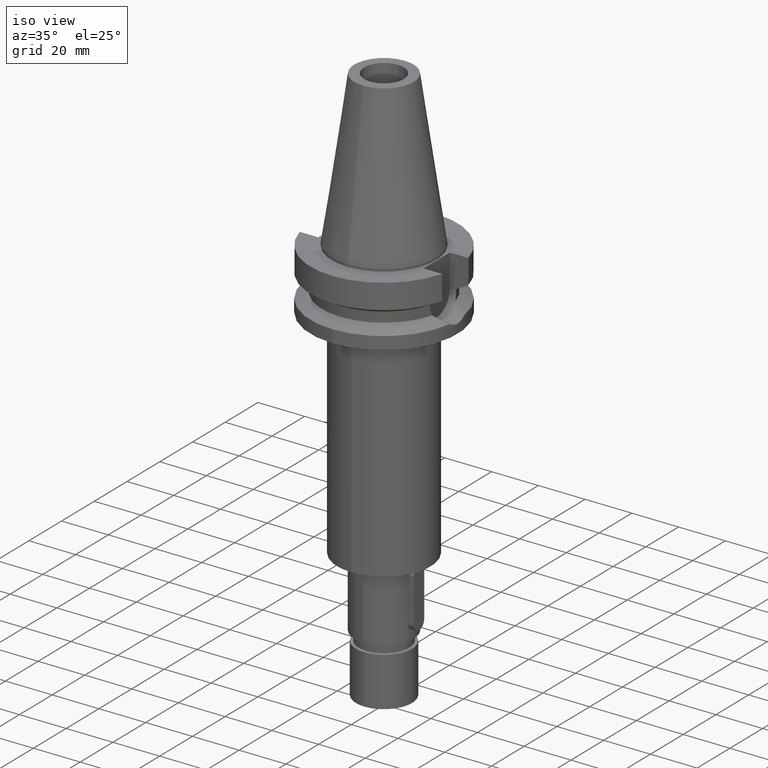
[diagram: clean part render]
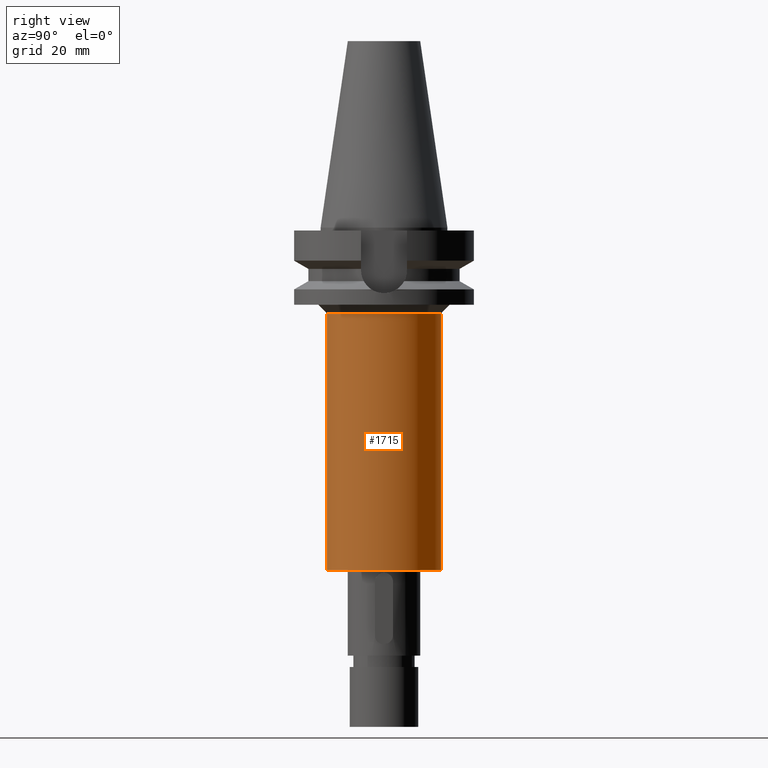
[diagram: tour spotlight — one face highlighted and labeled with its STEP entity id]
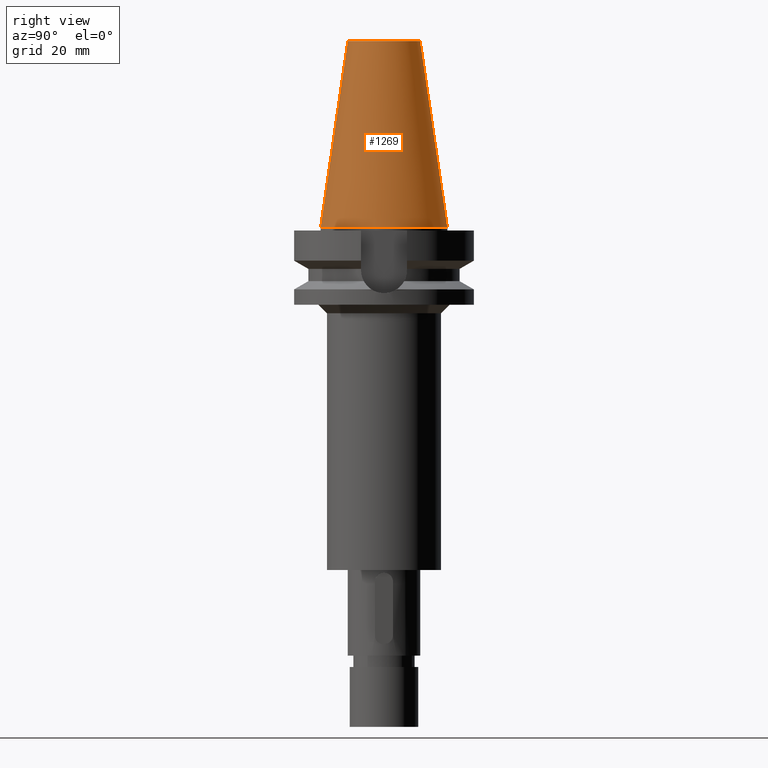
[diagram: tour spotlight — one face highlighted and labeled with its STEP entity id]
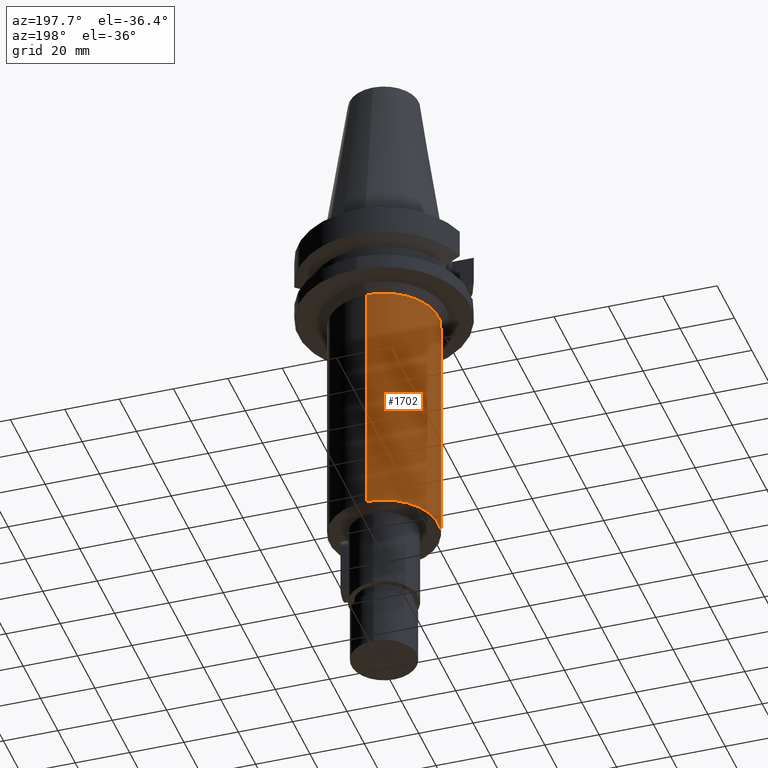
[diagram: tour spotlight — one face highlighted and labeled with its STEP entity id]
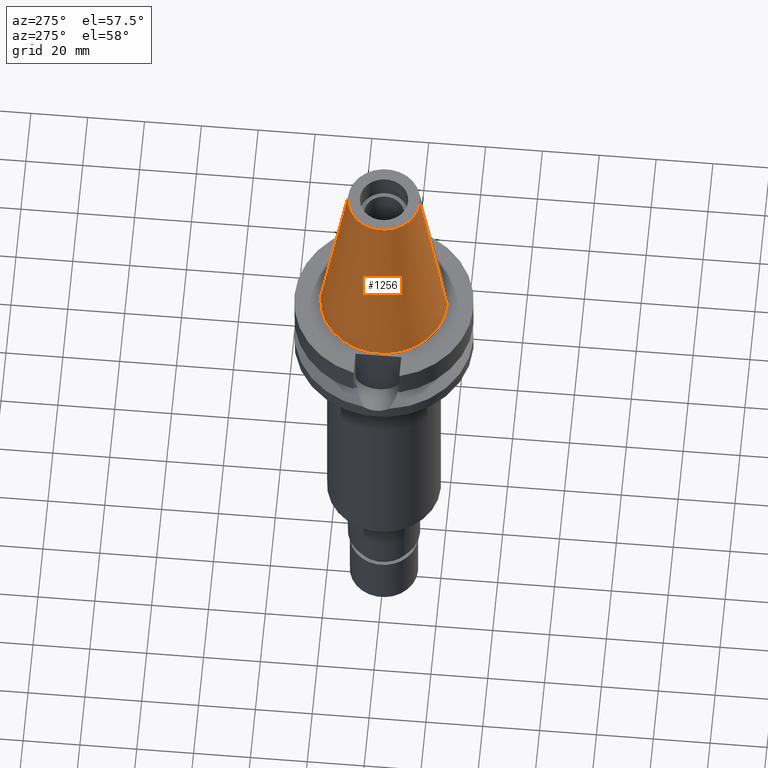
[diagram: tour spotlight — one face highlighted and labeled with its STEP entity id]
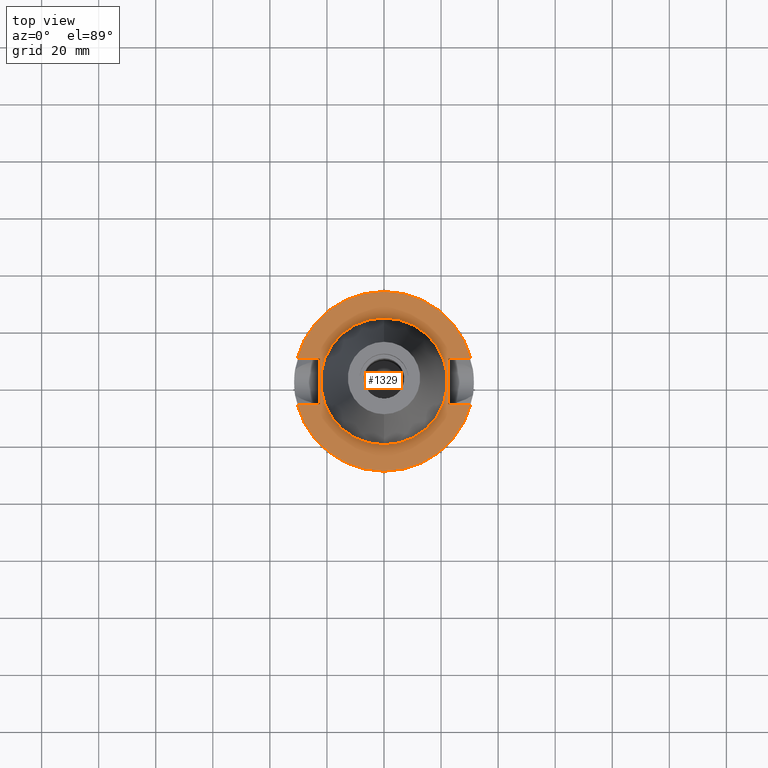
[diagram: tour spotlight — one face highlighted and labeled with its STEP entity id]
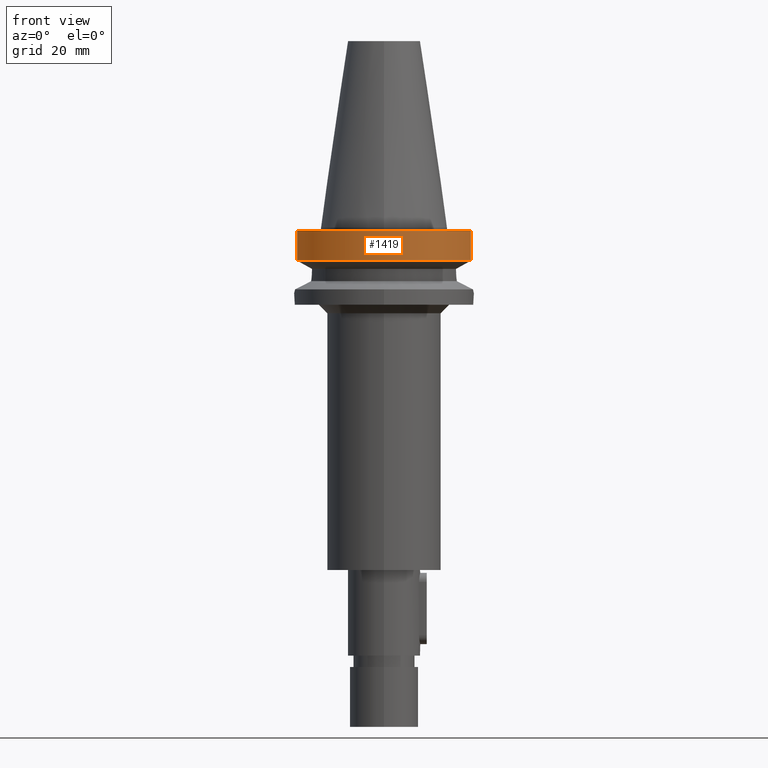
[diagram: tour spotlight — one face highlighted and labeled with its STEP entity id]
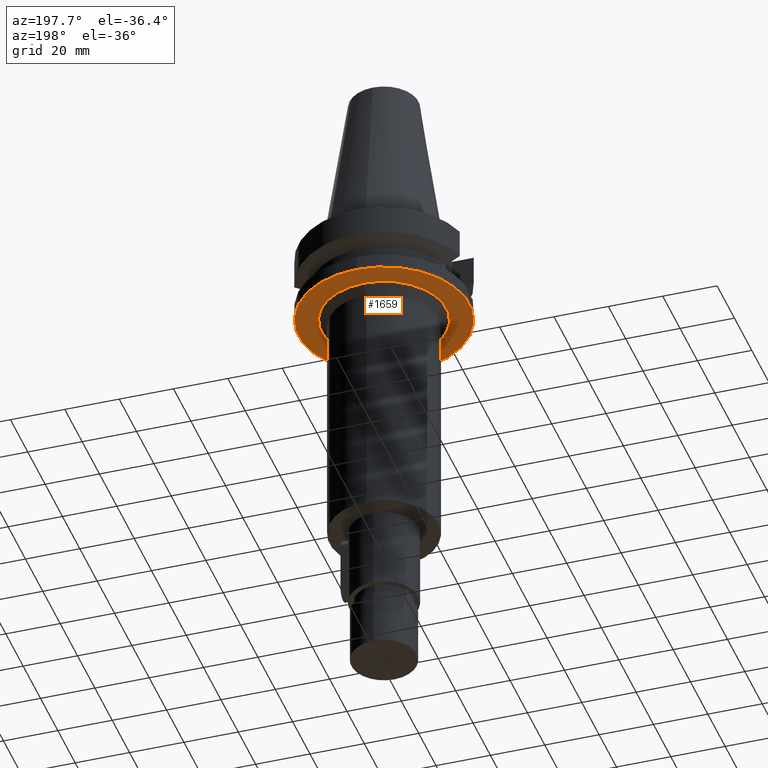
[diagram: tour spotlight — one face highlighted and labeled with its STEP entity id]
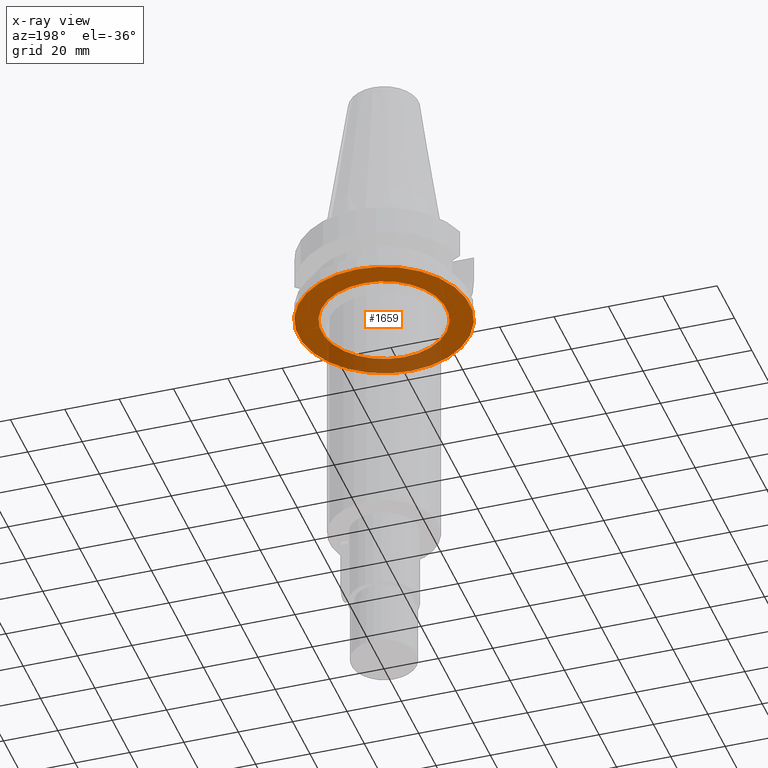
[diagram: x-ray of the same camera — body ghosted, this tour face saturated]
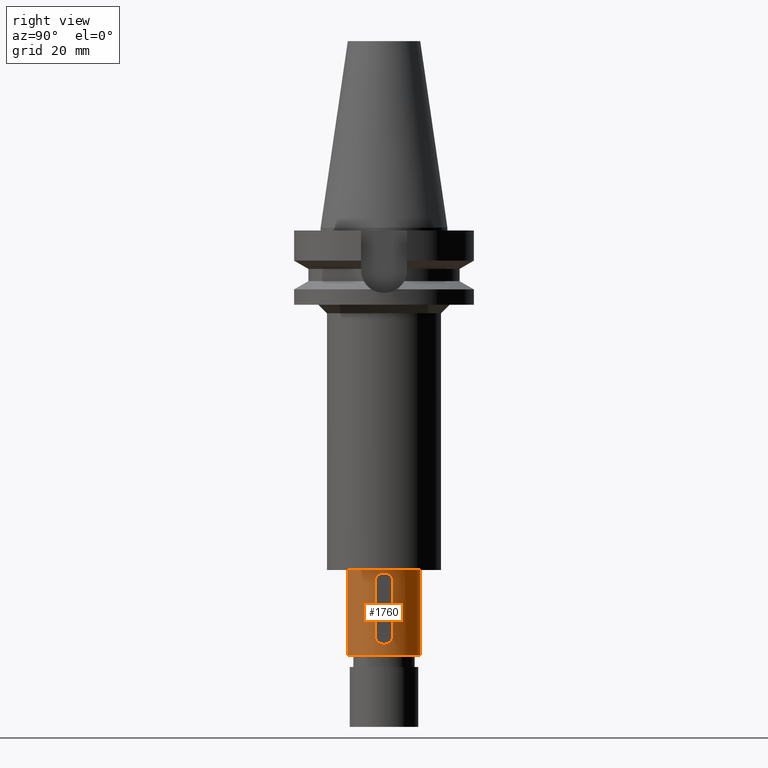
[diagram: tour spotlight — one face highlighted and labeled with its STEP entity id]
A machine part: a face-by-face anatomy tour. The part has 50 B-rep faces; the first image is the clean iso view, then the 8 largest visible faces are spotlighted one at a time (largest first), each with its STEP entity span.

Face 1 — right view, entity #1715. In plain terms, the highlighted cylindrical surface (partial cylindrical patch) has radius 20 mm, axis along (0, 0, -1).
Definition (entity closure, byte-faithful):
#655=CARTESIAN_POINT('',(0.E0,0.E0,-3.E1));
#656=DIRECTION('',(0.E0,0.E0,-1.E0));
#657=DIRECTION('',(0.E0,1.E0,0.E0));
#658=AXIS2_PLACEMENT_3D('',#655,#656,#657);
#678=DIRECTION('',(0.E0,0.E0,-1.E0));
#679=VECTOR('',#678,9.E1);
#680=CARTESIAN_POINT('',(0.E0,-2.E1,-3.E1));
#681=LINE('',#680,#679);
#685=DIRECTION('',(0.E0,0.E0,-1.E0));
#686=VECTOR('',#685,9.E1);
#687=CARTESIAN_POINT('',(0.E0,2.E1,-3.E1));
#688=LINE('',#687,#686);
#700=CARTESIAN_POINT('',(0.E0,2.172768351047E-14,-1.2E2));
#701=DIRECTION('',(0.E0,0.E0,1.E0));
#702=DIRECTION('',(0.E0,-1.E0,0.E0));
#703=AXIS2_PLACEMENT_3D('',#700,#701,#702);
#1173=CARTESIAN_POINT('',(0.E0,2.E1,-3.E1));
#1174=VERTEX_POINT('',#1173);
#1175=CARTESIAN_POINT('',(0.E0,-2.E1,-3.E1));
#1176=VERTEX_POINT('',#1175);
#1177=CARTESIAN_POINT('',(0.E0,2.E1,-1.2E2));
#1178=VERTEX_POINT('',#1177);
#1179=CARTESIAN_POINT('',(0.E0,-2.E1,-1.2E2));
#1180=VERTEX_POINT('',#1179);
#1703=CARTESIAN_POINT('',(0.E0,2.172768351047E-14,7.742E1));
#1704=DIRECTION('',(0.E0,0.E0,-1.E0));
#1705=DIRECTION('',(0.E0,-1.E0,0.E0));
#1706=AXIS2_PLACEMENT_3D('',#1703,#1704,#1705);
#1707=CYLINDRICAL_SURFACE('',#1706,2.E1);
#1708=ORIENTED_EDGE('',*,*,#1693,.T.);
#1710=ORIENTED_EDGE('',*,*,#1709,.F.);
#1711=ORIENTED_EDGE('',*,*,#1696,.F.);
#1712=ORIENTED_EDGE('',*,*,#1667,.F.);
#1713=EDGE_LOOP('',(#1708,#1710,#1711,#1712));
#1714=FACE_OUTER_BOUND('',#1713,.F.);
#659=CIRCLE('',#658,2.E1);
#704=CIRCLE('',#703,2.E1);
#1667=EDGE_CURVE('',#1174,#1176,#659,.T.);
#1693=EDGE_CURVE('',#1174,#1178,#688,.T.);
#1696=EDGE_CURVE('',#1176,#1180,#681,.T.);
#1709=EDGE_CURVE('',#1180,#1178,#704,.T.);
#1715=ADVANCED_FACE('',(#1714),#1707,.T.);

Face 2 — right view, entity #1269. In plain terms, the highlighted conical surface has half-angle 8.297 deg.
Definition (entity closure, byte-faithful):
#26=CARTESIAN_POINT('',(0.E0,1.625106302469E-14,6.54E1));
#27=DIRECTION('',(0.E0,0.E0,-1.E0));
#28=DIRECTION('',(0.E0,1.E0,0.E0));
#29=AXIS2_PLACEMENT_3D('',#26,#27,#28);
#50=DIRECTION('',(0.E0,-1.443043893540E-1,-9.895333461856E-1));
#51=VECTOR('',#50,6.609175956738E1);
#52=CARTESIAN_POINT('',(0.E0,-1.268766899430E1,6.54E1));
#53=LINE('',#52,#51);
#65=DIRECTION('',(0.E0,1.443043893540E-1,-9.895333461856E-1));
#66=VECTOR('',#65,6.609175956738E1);
#67=CARTESIAN_POINT('',(0.E0,1.268766899430E1,6.54E1));
#68=LINE('',#67,#66);
#72=CARTESIAN_POINT('',(0.E0,1.625106302469E-14,2.842170943040E-14));
#73=DIRECTION('',(0.E0,0.E0,-1.E0));
#74=DIRECTION('',(0.E0,1.E0,0.E0));
#75=AXIS2_PLACEMENT_3D('',#72,#73,#74);
#1058=CARTESIAN_POINT('',(0.E0,-1.268766899430E1,6.54E1));
#1059=CARTESIAN_POINT('',(0.E0,1.268766899430E1,6.54E1));
#1060=VERTEX_POINT('',#1058);
#1061=VERTEX_POINT('',#1059);
#1078=CARTESIAN_POINT('',(0.E0,2.2225E1,7.105427357601E-14));
#1079=VERTEX_POINT('',#1078);
#1080=CARTESIAN_POINT('',(0.E0,-2.2225E1,7.105427357601E-14));
#1081=VERTEX_POINT('',#1080);
#1257=CARTESIAN_POINT('',(0.E0,1.625106302469E-14,3.27E1));
#1258=DIRECTION('',(0.E0,0.E0,-1.E0));
#1259=DIRECTION('',(0.E0,-1.E0,0.E0));
#1260=AXIS2_PLACEMENT_3D('',#1257,#1258,#1259);
#1261=CONICAL_SURFACE('',#1260,1.745633449715E1,8.297E0);
#1262=ORIENTED_EDGE('',*,*,#1247,.T.);
#1264=ORIENTED_EDGE('',*,*,#1263,.T.);
#1265=ORIENTED_EDGE('',*,*,#1250,.F.);
#1266=ORIENTED_EDGE('',*,*,#1231,.F.);
#1267=EDGE_LOOP('',(#1262,#1264,#1265,#1266));
#1268=FACE_OUTER_BOUND('',#1267,.F.);
#30=CIRCLE('',#29,1.268766899430E1);
#76=CIRCLE('',#75,2.2225E1);
#1231=EDGE_CURVE('',#1061,#1060,#30,.T.);
#1247=EDGE_CURVE('',#1061,#1079,#68,.T.);
#1250=EDGE_CURVE('',#1060,#1081,#53,.T.);
#1263=EDGE_CURVE('',#1079,#1081,#76,.T.);
#1269=ADVANCED_FACE('',(#1268),#1261,.T.);

Face 3 — auxiliary view, entity #1702. In plain terms, the highlighted cylindrical surface (partial cylindrical patch) has radius 20 mm, axis along (0, 0, -1).
Definition (entity closure, byte-faithful):
#670=CARTESIAN_POINT('',(0.E0,0.E0,-3.E1));
#671=DIRECTION('',(0.E0,0.E0,-1.E0));
#672=DIRECTION('',(0.E0,-1.E0,0.E0));
#673=AXIS2_PLACEMENT_3D('',#670,#671,#672);
#678=DIRECTION('',(0.E0,0.E0,-1.E0));
#679=VECTOR('',#678,9.E1);
#680=CARTESIAN_POINT('',(0.E0,-2.E1,-3.E1));
#681=LINE('',#680,#679);
#685=DIRECTION('',(0.E0,0.E0,-1.E0));
#686=VECTOR('',#685,9.E1);
#687=CARTESIAN_POINT('',(0.E0,2.E1,-3.E1));
#688=LINE('',#687,#686);
#692=CARTESIAN_POINT('',(0.E0,2.172768351047E-14,-1.2E2));
#693=DIRECTION('',(0.E0,0.E0,1.E0));
#694=DIRECTION('',(0.E0,1.E0,0.E0));
#695=AXIS2_PLACEMENT_3D('',#692,#693,#694);
#1173=CARTESIAN_POINT('',(0.E0,2.E1,-3.E1));
#1174=VERTEX_POINT('',#1173);
#1175=CARTESIAN_POINT('',(0.E0,-2.E1,-3.E1));
#1176=VERTEX_POINT('',#1175);
#1177=CARTESIAN_POINT('',(0.E0,2.E1,-1.2E2));
#1178=VERTEX_POINT('',#1177);
#1179=CARTESIAN_POINT('',(0.E0,-2.E1,-1.2E2));
#1180=VERTEX_POINT('',#1179);
#1688=CARTESIAN_POINT('',(0.E0,2.172768351047E-14,7.742E1));
#1689=DIRECTION('',(0.E0,0.E0,-1.E0));
#1690=DIRECTION('',(0.E0,-1.E0,0.E0));
#1691=AXIS2_PLACEMENT_3D('',#1688,#1689,#1690);
#1692=CYLINDRICAL_SURFACE('',#1691,2.E1);
#1694=ORIENTED_EDGE('',*,*,#1693,.F.);
#1695=ORIENTED_EDGE('',*,*,#1683,.F.);
#1697=ORIENTED_EDGE('',*,*,#1696,.T.);
#1699=ORIENTED_EDGE('',*,*,#1698,.F.);
#1700=EDGE_LOOP('',(#1694,#1695,#1697,#1699));
#1701=FACE_OUTER_BOUND('',#1700,.F.);
#674=CIRCLE('',#673,2.E1);
#696=CIRCLE('',#695,2.E1);
#1683=EDGE_CURVE('',#1176,#1174,#674,.T.);
#1693=EDGE_CURVE('',#1174,#1178,#688,.T.);
#1696=EDGE_CURVE('',#1176,#1180,#681,.T.);
#1698=EDGE_CURVE('',#1178,#1180,#696,.T.);
#1702=ADVANCED_FACE('',(#1701),#1692,.T.);

Face 4 — auxiliary view, entity #1256. In plain terms, the highlighted conical surface has half-angle 8.297 deg.
Definition (entity closure, byte-faithful):
#17=CARTESIAN_POINT('',(0.E0,1.625106302469E-14,6.54E1));
#18=DIRECTION('',(0.E0,0.E0,-1.E0));
#19=DIRECTION('',(0.E0,-1.E0,0.E0));
#20=AXIS2_PLACEMENT_3D('',#17,#18,#19);
#50=DIRECTION('',(0.E0,-1.443043893540E-1,-9.895333461856E-1));
#51=VECTOR('',#50,6.609175956738E1);
#52=CARTESIAN_POINT('',(0.E0,-1.268766899430E1,6.54E1));
#53=LINE('',#52,#51);
#57=CARTESIAN_POINT('',(0.E0,1.625106302469E-14,2.842170943040E-14));
#58=DIRECTION('',(0.E0,0.E0,-1.E0));
#59=DIRECTION('',(0.E0,-1.E0,0.E0));
#60=AXIS2_PLACEMENT_3D('',#57,#58,#59);
#65=DIRECTION('',(0.E0,1.443043893540E-1,-9.895333461856E-1));
#66=VECTOR('',#65,6.609175956738E1);
#67=CARTESIAN_POINT('',(0.E0,1.268766899430E1,6.54E1));
#68=LINE('',#67,#66);
#1058=CARTESIAN_POINT('',(0.E0,-1.268766899430E1,6.54E1));
#1059=CARTESIAN_POINT('',(0.E0,1.268766899430E1,6.54E1));
#1060=VERTEX_POINT('',#1058);
#1061=VERTEX_POINT('',#1059);
#1078=CARTESIAN_POINT('',(0.E0,2.2225E1,7.105427357601E-14));
#1079=VERTEX_POINT('',#1078);
#1080=CARTESIAN_POINT('',(0.E0,-2.2225E1,7.105427357601E-14));
#1081=VERTEX_POINT('',#1080);
#1242=CARTESIAN_POINT('',(0.E0,1.625106302469E-14,3.27E1));
#1243=DIRECTION('',(0.E0,0.E0,-1.E0));
#1244=DIRECTION('',(0.E0,-1.E0,0.E0));
#1245=AXIS2_PLACEMENT_3D('',#1242,#1243,#1244);
#1246=CONICAL_SURFACE('',#1245,1.745633449715E1,8.297E0);
#1248=ORIENTED_EDGE('',*,*,#1247,.F.);
#1249=ORIENTED_EDGE('',*,*,#1229,.F.);
#1251=ORIENTED_EDGE('',*,*,#1250,.T.);
#1253=ORIENTED_EDGE('',*,*,#1252,.T.);
#1254=EDGE_LOOP('',(#1248,#1249,#1251,#1253));
#1255=FACE_OUTER_BOUND('',#1254,.F.);
#21=CIRCLE('',#20,1.268766899430E1);
#61=CIRCLE('',#60,2.2225E1);
#1229=EDGE_CURVE('',#1060,#1061,#21,.T.);
#1247=EDGE_CURVE('',#1061,#1079,#68,.T.);
#1250=EDGE_CURVE('',#1060,#1081,#53,.T.);
#1252=EDGE_CURVE('',#1081,#1079,#61,.T.);
#1256=ADVANCED_FACE('',(#1255),#1246,.T.);

Face 5 — top view, entity #1329. In plain terms, the highlighted planar face has unit normal (0, 0, -1).
Definition (entity closure, byte-faithful):
#94=DIRECTION('',(0.E0,1.E0,0.E0));
#95=VECTOR('',#94,1.61E1);
#96=CARTESIAN_POINT('',(-2.25E1,-8.05E0,-1.E0));
#97=LINE('',#96,#95);
#101=DIRECTION('',(-1.E0,-3.550916904668E-14,0.E0));
#102=VECTOR('',#101,7.954022722788E0);
#103=CARTESIAN_POINT('',(-2.25E1,8.05E0,-1.E0));
#104=LINE('',#103,#102);
#108=CARTESIAN_POINT('',(0.E0,2.172768351047E-14,-1.E0));
#109=DIRECTION('',(0.E0,0.E0,-1.E0));
#110=DIRECTION('',(-9.667943721520E-1,2.555555555556E-1,0.E0));
#111=AXIS2_PLACEMENT_3D('',#108,#109,#110);
#116=CARTESIAN_POINT('',(0.E0,2.172768351047E-14,-1.E0));
#117=DIRECTION('',(0.E0,0.E0,-1.E0));
#118=DIRECTION('',(0.E0,1.E0,0.E0));
#119=AXIS2_PLACEMENT_3D('',#116,#117,#118);
#124=DIRECTION('',(0.E0,-1.E0,0.E0));
#125=VECTOR('',#124,1.61E1);
#126=CARTESIAN_POINT('',(2.25E1,8.05E0,-1.E0));
#127=LINE('',#126,#125);
#131=DIRECTION('',(1.E0,3.573249715390E-14,0.E0));
#132=VECTOR('',#131,7.954022722788E0);
#133=CARTESIAN_POINT('',(2.25E1,-8.05E0,-1.E0));
#134=LINE('',#133,#132);
#138=CARTESIAN_POINT('',(0.E0,2.172768351047E-14,-1.E0));
#139=DIRECTION('',(0.E0,0.E0,-1.E0));
#140=DIRECTION('',(9.667943721520E-1,-2.555555555556E-1,0.E0));
#141=AXIS2_PLACEMENT_3D('',#138,#139,#140);
#146=CARTESIAN_POINT('',(0.E0,2.172768351047E-14,-1.E0));
#147=DIRECTION('',(0.E0,0.E0,-1.E0));
#148=DIRECTION('',(0.E0,-1.E0,0.E0));
#149=AXIS2_PLACEMENT_3D('',#146,#147,#148);
#154=CARTESIAN_POINT('',(0.E0,2.172768351047E-14,-1.E0));
#155=DIRECTION('',(0.E0,0.E0,1.E0));
#156=DIRECTION('',(0.E0,1.E0,0.E0));
#157=AXIS2_PLACEMENT_3D('',#154,#155,#156);
#162=CARTESIAN_POINT('',(0.E0,2.172768351047E-14,-1.E0));
#163=DIRECTION('',(0.E0,0.E0,1.E0));
#164=DIRECTION('',(0.E0,-1.E0,0.E0));
#165=AXIS2_PLACEMENT_3D('',#162,#163,#164);
#200=DIRECTION('',(-1.E0,3.550916904668E-14,0.E0));
#201=VECTOR('',#200,7.954022722788E0);
#202=CARTESIAN_POINT('',(-2.25E1,-8.05E0,-1.E0));
#203=LINE('',#202,#201);
#337=DIRECTION('',(1.E0,-3.506251283226E-14,0.E0));
#338=VECTOR('',#337,7.954022722788E0);
#339=CARTESIAN_POINT('',(2.25E1,8.05E0,-1.E0));
#340=LINE('',#339,#338);
#1082=CARTESIAN_POINT('',(0.E0,2.2225E1,-1.E0));
#1083=VERTEX_POINT('',#1082);
#1084=CARTESIAN_POINT('',(0.E0,-2.2225E1,-1.E0));
#1085=VERTEX_POINT('',#1084);
#1086=CARTESIAN_POINT('',(-2.25E1,-8.05E0,-1.E0));
#1087=CARTESIAN_POINT('',(-2.25E1,8.05E0,-1.E0));
#1088=VERTEX_POINT('',#1086);
#1089=VERTEX_POINT('',#1087);
#1090=CARTESIAN_POINT('',(-3.045402272279E1,8.05E0,-1.E0));
#1091=VERTEX_POINT('',#1090);
#1092=CARTESIAN_POINT('',(0.E0,3.15E1,-1.E0));
#1093=CARTESIAN_POINT('',(3.045402272279E1,8.05E0,-1.E0));
#1094=VERTEX_POINT('',#1092);
#1095=VERTEX_POINT('',#1093);
#1096=CARTESIAN_POINT('',(2.25E1,8.05E0,-1.E0));
#1097=VERTEX_POINT('',#1096);
#1098=CARTESIAN_POINT('',(2.25E1,-8.05E0,-1.E0));
#1099=VERTEX_POINT('',#1098);
#1100=CARTESIAN_POINT('',(3.045402272279E1,-8.05E0,-1.E0));
#1101=VERTEX_POINT('',#1100);
#1102=CARTESIAN_POINT('',(0.E0,-3.15E1,-1.E0));
#1103=CARTESIAN_POINT('',(-3.045402272279E1,-8.05E0,-1.E0));
#1104=VERTEX_POINT('',#1102);
#1105=VERTEX_POINT('',#1103);
#1298=CARTESIAN_POINT('',(0.E0,1.212400331156E-14,-1.E0));
#1299=DIRECTION('',(0.E0,0.E0,-1.E0));
#1300=DIRECTION('',(0.E0,-1.E0,0.E0));
#1301=AXIS2_PLACEMENT_3D('',#1298,#1299,#1300);
#1302=PLANE('',#1301);
#1304=ORIENTED_EDGE('',*,*,#1303,.T.);
#1306=ORIENTED_EDGE('',*,*,#1305,.T.);
#1308=ORIENTED_EDGE('',*,*,#1307,.T.);
#1310=ORIENTED_EDGE('',*,*,#1309,.T.);
#1312=ORIENTED_EDGE('',*,*,#1311,.F.);
#1314=ORIENTED_EDGE('',*,*,#1313,.T.);
#1316=ORIENTED_EDGE('',*,*,#1315,.T.);
#1318=ORIENTED_EDGE('',*,*,#1317,.T.);
#1320=ORIENTED_EDGE('',*,*,#1319,.T.);
#1322=ORIENTED_EDGE('',*,*,#1321,.F.);
#1323=EDGE_LOOP('',(#1304,#1306,#1308,#1310,#1312,#1314,#1316,#1318,#1320,
#1322));
#1324=FACE_OUTER_BOUND('',#1323,.F.);
#1325=ORIENTED_EDGE('',*,*,#1293,.T.);
#1326=ORIENTED_EDGE('',*,*,#1277,.T.);
#1327=EDGE_LOOP('',(#1325,#1326));
#1328=FACE_BOUND('',#1327,.F.);
#112=CIRCLE('',#111,3.15E1);
#120=CIRCLE('',#119,3.15E1);
#142=CIRCLE('',#141,3.15E1);
#150=CIRCLE('',#149,3.15E1);
#158=CIRCLE('',#157,2.2225E1);
#166=CIRCLE('',#165,2.2225E1);
#1277=EDGE_CURVE('',#1085,#1083,#166,.T.);
#1293=EDGE_CURVE('',#1083,#1085,#158,.T.);
#1303=EDGE_CURVE('',#1088,#1089,#97,.T.);
#1305=EDGE_CURVE('',#1089,#1091,#104,.T.);
#1307=EDGE_CURVE('',#1091,#1094,#112,.T.);
#1309=EDGE_CURVE('',#1094,#1095,#120,.T.);
#1311=EDGE_CURVE('',#1097,#1095,#340,.T.);
#1313=EDGE_CURVE('',#1097,#1099,#127,.T.);
#1315=EDGE_CURVE('',#1099,#1101,#134,.T.);
#1317=EDGE_CURVE('',#1101,#1104,#142,.T.);
#1319=EDGE_CURVE('',#1104,#1105,#150,.T.);
#1321=EDGE_CURVE('',#1088,#1105,#203,.T.);
#1329=ADVANCED_FACE('',(#1324,#1328),#1302,.F.);

Face 6 — front view, entity #1419. In plain terms, the highlighted cylindrical surface (partial cylindrical patch) has radius 31.5 mm, axis along (0, 0, -1).
Definition (entity closure, byte-faithful):
#138=CARTESIAN_POINT('',(0.E0,2.172768351047E-14,-1.E0));
#139=DIRECTION('',(0.E0,0.E0,-1.E0));
#140=DIRECTION('',(9.667943721520E-1,-2.555555555556E-1,0.E0));
#141=AXIS2_PLACEMENT_3D('',#138,#139,#140);
#146=CARTESIAN_POINT('',(0.E0,2.172768351047E-14,-1.E0));
#147=DIRECTION('',(0.E0,0.E0,-1.E0));
#148=DIRECTION('',(0.E0,-1.E0,0.E0));
#149=AXIS2_PLACEMENT_3D('',#146,#147,#148);
#251=CARTESIAN_POINT('',(0.E0,1.065333950388E-14,-1.156550565267E1));
#252=DIRECTION('',(0.E0,0.E0,1.E0));
#253=DIRECTION('',(-9.667943721520E-1,-2.555555555555E-1,0.E0));
#254=AXIS2_PLACEMENT_3D('',#251,#252,#253);
#259=CARTESIAN_POINT('',(0.E0,1.065333950388E-14,-1.156550565267E1));
#260=DIRECTION('',(0.E0,0.E0,1.E0));
#261=DIRECTION('',(0.E0,-1.E0,0.E0));
#262=AXIS2_PLACEMENT_3D('',#259,#260,#261);
#283=DIRECTION('',(1.805835241064E-8,-6.831694115687E-8,1.E0));
#284=VECTOR('',#283,1.056551215380E1);
#285=CARTESIAN_POINT('',(-3.045402291358E1,-8.049999278196E0,
-1.156551215380E1));
#286=LINE('',#285,#284);
#290=DIRECTION('',(-1.036649194657E-7,-3.921750933745E-7,-9.999999999999E-1));
#291=VECTOR('',#290,1.056546832966E1);
#292=CARTESIAN_POINT('',(3.045402272279E1,-8.05E0,-1.E0));
#293=LINE('',#292,#291);
#1100=CARTESIAN_POINT('',(3.045402272279E1,-8.05E0,-1.E0));
#1101=VERTEX_POINT('',#1100);
#1102=CARTESIAN_POINT('',(0.E0,-3.15E1,-1.E0));
#1103=CARTESIAN_POINT('',(-3.045402272279E1,-8.05E0,-1.E0));
#1104=VERTEX_POINT('',#1102);
#1105=VERTEX_POINT('',#1103);
#1116=CARTESIAN_POINT('',(-3.045402291358E1,-8.049999278196E0,
-1.156551215380E1));
#1117=VERTEX_POINT('',#1116);
#1143=CARTESIAN_POINT('',(0.E0,-3.15E1,-1.156550565267E1));
#1144=CARTESIAN_POINT('',(3.045402272279E1,-8.049999999999E0,
-1.156550565267E1));
#1145=VERTEX_POINT('',#1143);
#1146=VERTEX_POINT('',#1144);
#1405=CARTESIAN_POINT('',(0.E0,2.172768351047E-14,7.742E1));
#1406=DIRECTION('',(0.E0,0.E0,-1.E0));
#1407=DIRECTION('',(0.E0,-1.E0,0.E0));
#1408=AXIS2_PLACEMENT_3D('',#1405,#1406,#1407);
#1409=CYLINDRICAL_SURFACE('',#1408,3.15E1);
#1410=ORIENTED_EDGE('',*,*,#1358,.T.);
#1411=ORIENTED_EDGE('',*,*,#1319,.F.);
#1412=ORIENTED_EDGE('',*,*,#1317,.F.);
#1414=ORIENTED_EDGE('',*,*,#1413,.T.);
#1415=ORIENTED_EDGE('',*,*,#1396,.F.);
#1416=ORIENTED_EDGE('',*,*,#1394,.F.);
#1417=EDGE_LOOP('',(#1410,#1411,#1412,#1414,#1415,#1416));
#1418=FACE_OUTER_BOUND('',#1417,.F.);
#142=CIRCLE('',#141,3.15E1);
#150=CIRCLE('',#149,3.15E1);
#255=CIRCLE('',#254,3.15E1);
#263=CIRCLE('',#262,3.15E1);
#1317=EDGE_CURVE('',#1101,#1104,#142,.T.);
#1319=EDGE_CURVE('',#1104,#1105,#150,.T.);
#1358=EDGE_CURVE('',#1117,#1105,#286,.T.);
#1394=EDGE_CURVE('',#1117,#1145,#255,.T.);
#1396=EDGE_CURVE('',#1145,#1146,#263,.T.);
#1413=EDGE_CURVE('',#1101,#1146,#293,.T.);
#1419=ADVANCED_FACE('',(#1418),#1409,.T.);

Face 7 — auxiliary view, entity #1659. An x-ray twin of the same camera follows (body ghosted, this face saturated) — the face is partly hidden behind the body. In plain terms, the highlighted planar face has unit normal (0, 0, -1).
Definition (entity closure, byte-faithful):
#616=CARTESIAN_POINT('',(0.E0,2.172768351047E-14,-2.7E1));
#617=DIRECTION('',(0.E0,0.E0,1.E0));
#618=DIRECTION('',(0.E0,1.E0,0.E0));
#619=AXIS2_PLACEMENT_3D('',#616,#617,#618);
#624=CARTESIAN_POINT('',(0.E0,2.172768351047E-14,-2.7E1));
#625=DIRECTION('',(0.E0,0.E0,1.E0));
#626=DIRECTION('',(0.E0,-1.E0,0.E0));
#627=AXIS2_PLACEMENT_3D('',#624,#625,#626);
#632=CARTESIAN_POINT('',(0.E0,0.E0,-2.7E1));
#633=DIRECTION('',(0.E0,0.E0,-1.E0));
#634=DIRECTION('',(0.E0,1.E0,0.E0));
#635=AXIS2_PLACEMENT_3D('',#632,#633,#634);
#640=CARTESIAN_POINT('',(0.E0,0.E0,-2.7E1));
#641=DIRECTION('',(0.E0,0.E0,-1.E0));
#642=DIRECTION('',(0.E0,-1.E0,0.E0));
#643=AXIS2_PLACEMENT_3D('',#640,#641,#642);
#1161=CARTESIAN_POINT('',(0.E0,3.15E1,-2.7E1));
#1162=VERTEX_POINT('',#1161);
#1163=CARTESIAN_POINT('',(0.E0,-3.15E1,-2.7E1));
#1164=VERTEX_POINT('',#1163);
#1169=CARTESIAN_POINT('',(0.E0,2.3E1,-2.7E1));
#1170=CARTESIAN_POINT('',(0.E0,-2.3E1,-2.7E1));
#1171=VERTEX_POINT('',#1169);
#1172=VERTEX_POINT('',#1170);
#1644=CARTESIAN_POINT('',(0.E0,0.E0,-2.7E1));
#1645=DIRECTION('',(0.E0,0.E0,-1.E0));
#1646=DIRECTION('',(0.E0,-1.E0,0.E0));
#1647=AXIS2_PLACEMENT_3D('',#1644,#1645,#1646);
#1648=PLANE('',#1647);
#1649=ORIENTED_EDGE('',*,*,#1637,.T.);
#1650=ORIENTED_EDGE('',*,*,#1606,.T.);
#1651=EDGE_LOOP('',(#1649,#1650));
#1652=FACE_OUTER_BOUND('',#1651,.F.);
#1654=ORIENTED_EDGE('',*,*,#1653,.T.);
#1656=ORIENTED_EDGE('',*,*,#1655,.T.);
#1657=EDGE_LOOP('',(#1654,#1656));
#1658=FACE_BOUND('',#1657,.F.);
#620=CIRCLE('',#619,3.15E1);
#628=CIRCLE('',#627,3.15E1);
#636=CIRCLE('',#635,2.3E1);
#644=CIRCLE('',#643,2.3E1);
#1606=EDGE_CURVE('',#1164,#1162,#628,.T.);
#1637=EDGE_CURVE('',#1162,#1164,#620,.T.);
#1653=EDGE_CURVE('',#1171,#1172,#636,.T.);
#1655=EDGE_CURVE('',#1172,#1171,#644,.T.);
#1659=ADVANCED_FACE('',(#1652,#1658),#1648,.T.);

Face 8 — right view, entity #1760. In plain terms, the highlighted cylindrical surface (edge-blend (fillet) strip) has radius 12.7 mm, axis along (0, 0, -1).
Definition (entity closure, byte-faithful):
#708=CARTESIAN_POINT('',(0.E0,2.172768351047E-14,-1.2E2));
#709=DIRECTION('',(0.E0,0.E0,-1.E0));
#710=DIRECTION('',(0.E0,1.E0,0.E0));
#711=AXIS2_PLACEMENT_3D('',#708,#709,#710);
#724=DIRECTION('',(0.E0,0.E0,-1.E0));
#725=VECTOR('',#724,3.E1);
#726=CARTESIAN_POINT('',(0.E0,1.27E1,-1.2E2));
#727=LINE('',#726,#725);
#731=DIRECTION('',(0.E0,0.E0,-1.E0));
#732=VECTOR('',#731,1.865E1);
#733=CARTESIAN_POINT('',(1.229672212421E1,-3.175E0,-1.24175E2));
#734=LINE('',#733,#732);
#738=DIRECTION('',(0.E0,0.E0,1.E0));
#739=VECTOR('',#738,1.865E1);
#740=CARTESIAN_POINT('',(1.229672212421E1,3.175E0,-1.42825E2));
#741=LINE('',#740,#739);
#745=DIRECTION('',(0.E0,0.E0,-1.E0));
#746=VECTOR('',#745,3.E1);
#747=CARTESIAN_POINT('',(0.E0,-1.27E1,-1.2E2));
#748=LINE('',#747,#746);
#760=CARTESIAN_POINT('',(0.E0,2.172768351047E-14,-1.5E2));
#761=DIRECTION('',(0.E0,0.E0,1.E0));
#762=DIRECTION('',(0.E0,-1.E0,0.E0));
#763=AXIS2_PLACEMENT_3D('',#760,#761,#762);
#860=CARTESIAN_POINT('',(1.229672212421E1,-3.175E0,-1.24175E2));
#861=CARTESIAN_POINT('',(1.229672212421E1,-3.175E0,-1.238498744353E2));
#862=CARTESIAN_POINT('',(1.232323572155E1,-3.075263009918E0,-1.231948797635E2));
#863=CARTESIAN_POINT('',(1.243213568247E1,-2.617278931531E0,-1.222856301067E2));
#864=CARTESIAN_POINT('',(1.256514284771E1,-1.907306839805E0,-1.215704315798E2));
#865=CARTESIAN_POINT('',(1.267340349821E1,-9.958090468378E-1,
-1.211036694260E2));
#866=CARTESIAN_POINT('',(1.270000023457E1,-3.312687155160E-1,
-1.209999989009E2));
#867=CARTESIAN_POINT('',(1.270000023457E1,-8.647409637839E-14,
-1.209999989009E2));
#872=CARTESIAN_POINT('',(1.270000023457E1,-8.647409637839E-14,
-1.209999989009E2));
#873=CARTESIAN_POINT('',(1.270000023457E1,3.258232850553E-1,-1.209999989009E2));
#874=CARTESIAN_POINT('',(1.267429337412E1,9.817969938815E-1,-1.211002351068E2));
#875=CARTESIAN_POINT('',(1.256774046682E1,1.890377322092E0,-1.215585171899E2));
#876=CARTESIAN_POINT('',(1.243475430865E1,2.605441626735E0,-1.222687572763E2));
#877=CARTESIAN_POINT('',(1.232413862310E1,3.071907352091E0,-1.231810868102E2));
#878=CARTESIAN_POINT('',(1.229672212421E1,3.175E0,-1.238445303275E2));
#879=CARTESIAN_POINT('',(1.229672212421E1,3.175E0,-1.24175E2));
#898=CARTESIAN_POINT('',(1.229672212421E1,3.175E0,-1.42825E2));
#899=CARTESIAN_POINT('',(1.229672212421E1,3.175E0,-1.431501255657E2));
#900=CARTESIAN_POINT('',(1.232323572046E1,3.075262998226E0,-1.438051203333E2));
#901=CARTESIAN_POINT('',(1.243213575725E1,2.617278682950E0,-1.447143704575E2));
#902=CARTESIAN_POINT('',(1.256514300557E1,1.907305644673E0,-1.454295691192E2));
#903=CARTESIAN_POINT('',(1.267340336818E1,9.958102454271E-1,-1.458963300141E2));
#904=CARTESIAN_POINT('',(1.270000023457E1,3.312693006728E-1,-1.460000010991E2));
#905=CARTESIAN_POINT('',(1.270000023457E1,4.586991562200E-14,
-1.460000010991E2));
#910=CARTESIAN_POINT('',(1.270000023457E1,4.586991562200E-14,
-1.460000010991E2));
#911=CARTESIAN_POINT('',(1.270000023457E1,-3.258226668607E-1,
-1.460000010991E2));
#912=CARTESIAN_POINT('',(1.267429350586E1,-9.817957458743E-1,
-1.458997654520E2));
#913=CARTESIAN_POINT('',(1.256774031840E1,-1.890378495365E0,-1.454414821755E2));
#914=CARTESIAN_POINT('',(1.243475417272E1,-2.605442179079E0,-1.447312418182E2));
#915=CARTESIAN_POINT('',(1.232413858949E1,-3.071907490211E0,-1.438189126254E2));
#916=CARTESIAN_POINT('',(1.229672212421E1,-3.175E0,-1.431554694655E2));
#917=CARTESIAN_POINT('',(1.229672212421E1,-3.175E0,-1.42825E2));
#1181=CARTESIAN_POINT('',(0.E0,1.27E1,-1.2E2));
#1182=CARTESIAN_POINT('',(0.E0,-1.27E1,-1.2E2));
#1183=VERTEX_POINT('',#1181);
#1184=VERTEX_POINT('',#1182);
#1185=CARTESIAN_POINT('',(0.E0,1.27E1,-1.5E2));
#1186=VERTEX_POINT('',#1185);
#1187=CARTESIAN_POINT('',(0.E0,-1.27E1,-1.5E2));
#1188=VERTEX_POINT('',#1187);
#1189=VERTEX_POINT('',#872);
#1190=VERTEX_POINT('',#879);
#1191=VERTEX_POINT('',#860);
#1192=CARTESIAN_POINT('',(1.229672212421E1,-3.175E0,-1.42825E2));
#1193=VERTEX_POINT('',#1192);
#1194=VERTEX_POINT('',#910);
#1195=VERTEX_POINT('',#898);
#1732=CARTESIAN_POINT('',(0.E0,2.172768351047E-14,7.742E1));
#1733=DIRECTION('',(0.E0,0.E0,-1.E0));
#1734=DIRECTION('',(0.E0,-1.E0,0.E0));
#1735=AXIS2_PLACEMENT_3D('',#1732,#1733,#1734);
#1736=CYLINDRICAL_SURFACE('',#1735,1.27E1);
#1738=ORIENTED_EDGE('',*,*,#1737,.T.);
#1740=ORIENTED_EDGE('',*,*,#1739,.F.);
#1742=ORIENTED_EDGE('',*,*,#1741,.F.);
#1743=ORIENTED_EDGE('',*,*,#1725,.F.);
#1744=EDGE_LOOP('',(#1738,#1740,#1742,#1743));
#1745=FACE_OUTER_BOUND('',#1744,.F.);
#1747=ORIENTED_EDGE('',*,*,#1746,.F.);
#1749=ORIENTED_EDGE('',*,*,#1748,.F.);
#1751=ORIENTED_EDGE('',*,*,#1750,.T.);
#1753=ORIENTED_EDGE('',*,*,#1752,.F.);
#1755=ORIENTED_EDGE('',*,*,#1754,.F.);
#1757=ORIENTED_EDGE('',*,*,#1756,.T.);
#1758=EDGE_LOOP('',(#1747,#1749,#1751,#1753,#1755,#1757));
#1759=FACE_BOUND('',#1758,.F.);
#712=CIRCLE('',#711,1.27E1);
#764=CIRCLE('',#763,1.27E1);
#868=B_SPLINE_CURVE_WITH_KNOTS('',3,(#860,#861,#862,#863,#864,#865,#866,#867),
.UNSPECIFIED.,.F.,.F.,(4,1,1,1,1,4),(0.E0,2.E-1,4.E-1,6.E-1,8.E-1,1.E0),
.UNSPECIFIED.);
#880=B_SPLINE_CURVE_WITH_KNOTS('',3,(#872,#873,#874,#875,#876,#877,#878,#879),
.UNSPECIFIED.,.F.,.F.,(4,1,1,1,1,4),(0.E0,2.E-1,4.E-1,6.E-1,8.E-1,1.E0),
.UNSPECIFIED.);
#906=B_SPLINE_CURVE_WITH_KNOTS('',3,(#898,#899,#900,#901,#902,#903,#904,#905),
.UNSPECIFIED.,.F.,.F.,(4,1,1,1,1,4),(0.E0,2.E-1,4.E-1,6.E-1,8.E-1,1.E0),
.UNSPECIFIED.);
#918=B_SPLINE_CURVE_WITH_KNOTS('',3,(#910,#911,#912,#913,#914,#915,#916,#917),
.UNSPECIFIED.,.F.,.F.,(4,1,1,1,1,4),(0.E0,2.E-1,4.E-1,6.E-1,8.E-1,1.E0),
.UNSPECIFIED.);
#1725=EDGE_CURVE('',#1183,#1184,#712,.T.);
#1737=EDGE_CURVE('',#1183,#1186,#727,.T.);
#1739=EDGE_CURVE('',#1188,#1186,#764,.T.);
#1741=EDGE_CURVE('',#1184,#1188,#748,.T.);
#1746=EDGE_CURVE('',#1189,#1190,#880,.T.);
#1748=EDGE_CURVE('',#1191,#1189,#868,.T.);
#1750=EDGE_CURVE('',#1191,#1193,#734,.T.);
#1752=EDGE_CURVE('',#1194,#1193,#918,.T.);
#1754=EDGE_CURVE('',#1195,#1194,#906,.T.);
#1756=EDGE_CURVE('',#1195,#1190,#741,.T.);
#1760=ADVANCED_FACE('',(#1745,#1759),#1736,.T.);